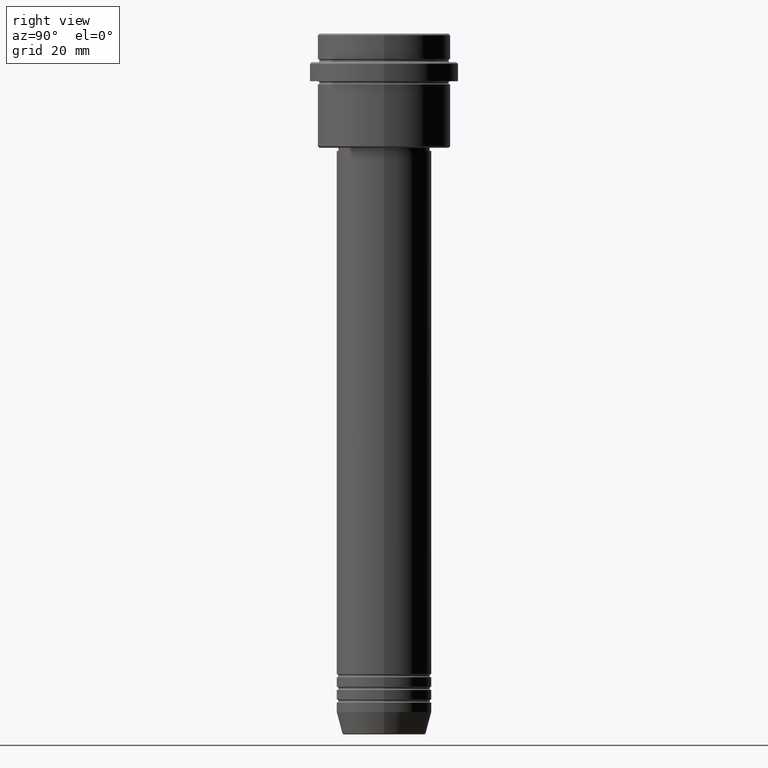
[diagram: clean part render]
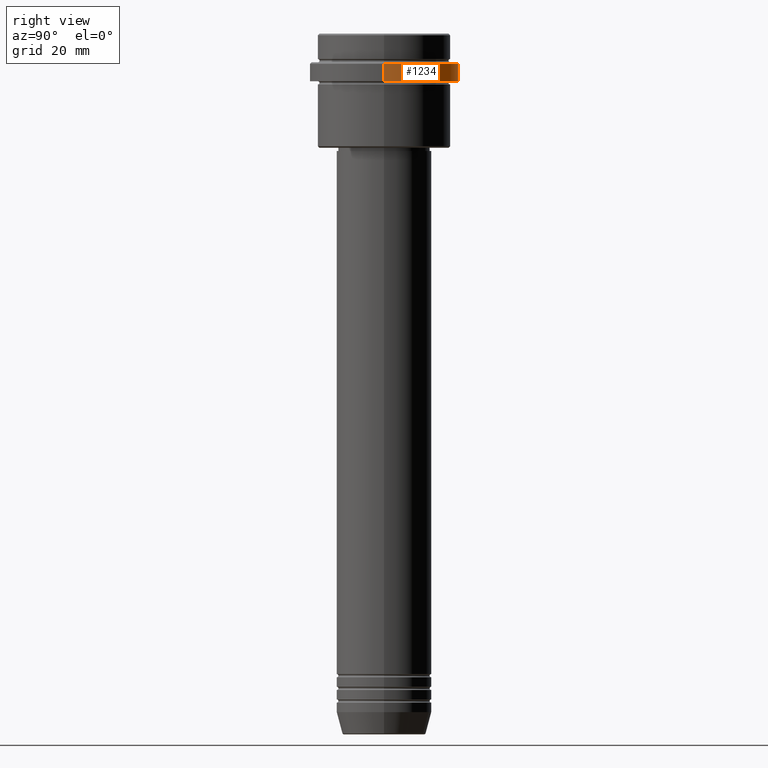
[diagram: same view with one face highlighted and labeled with its STEP entity id]
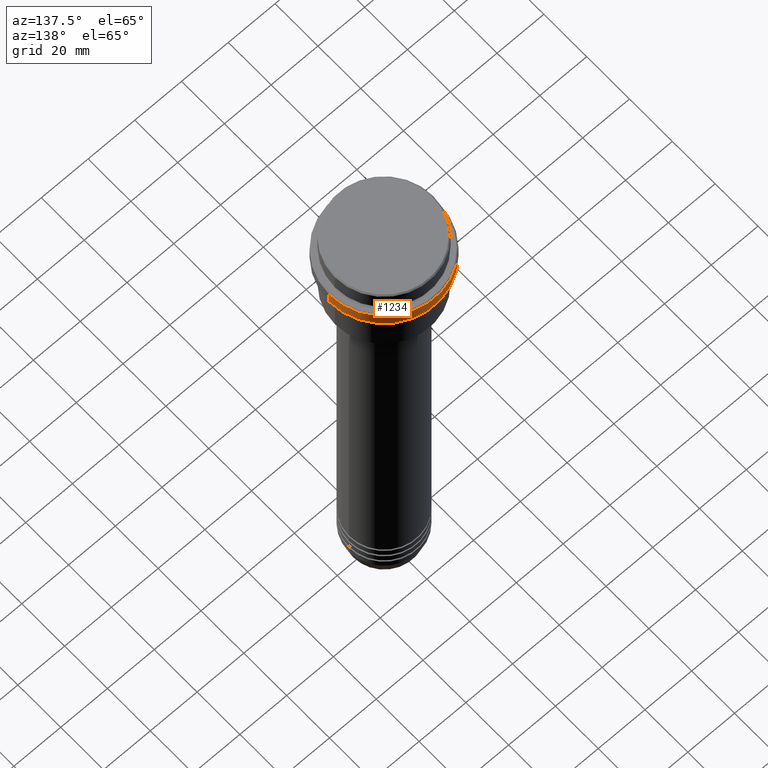
[diagram: same view with one face highlighted and labeled with its STEP entity id]
A machine part, right view. The second image highlights one B-rep face of the part: STEP entity #1234.
A second angle (auxiliary view) of the same face is appended — the face is thin or edge-on in the first view.
In plain terms, the highlighted cylindrical surface (partial cylindrical patch) has radius 23.5 mm, axis along (-0, -0, 1).
Its self-contained STEP definition (entity closure, byte-faithful):
#12 = CARTESIAN_POINT ( 'NONE',  ( -23.50000000000000711, 2.877919977996281109E-15, -15.00000000000000000 ) ) ;
#21 = CARTESIAN_POINT ( 'NONE',  ( 0.000000000000000000, 0.000000000000000000, -15.00000000000000000 ) ) ;
#47 = EDGE_CURVE ( 'NONE', #712, #926, #1346, .T. ) ;
#97 = CIRCLE ( 'NONE', #1412, 23.50000000000000355 ) ;
#105 = EDGE_CURVE ( 'NONE', #257, #894, #97, .T. ) ;
#109 = DIRECTION ( 'NONE',  ( -0.000000000000000000, -0.000000000000000000, 1.000000000000000000 ) ) ;
#145 = DIRECTION ( 'NONE',  ( 0.000000000000000000, 0.000000000000000000, -1.000000000000000000 ) ) ;
#152 = LINE ( 'NONE', #258, #310 ) ;
#176 = DIRECTION ( 'NONE',  ( -0.000000000000000000, -0.000000000000000000, 1.000000000000000000 ) ) ;
#181 = ORIENTED_EDGE ( 'NONE', *, *, #47, .T. ) ;
#227 = DIRECTION ( 'NONE',  ( 1.000000000000000000, 0.000000000000000000, 0.000000000000000000 ) ) ;
#257 = VERTEX_POINT ( 'NONE', #1368 ) ;
#258 = CARTESIAN_POINT ( 'NONE',  ( -23.50000000000000000, 2.877919977996280320E-15, 0.000000000000000000 ) ) ;
#310 = VECTOR ( 'NONE', #1025, 1000.000000000000000 ) ;
#323 = VECTOR ( 'NONE', #1095, 1000.000000000000000 ) ;
#400 = CARTESIAN_POINT ( 'NONE',  ( 23.50000000000000000, 0.000000000000000000, 0.000000000000000000 ) ) ;
#423 = EDGE_LOOP ( 'NONE', ( #867, #1190, #181, #524 ) ) ;
#490 = CARTESIAN_POINT ( 'NONE',  ( -23.50000000000000000, 2.877919977996280320E-15, -9.500000000000026645 ) ) ;
#524 = ORIENTED_EDGE ( 'NONE', *, *, #1345, .F. ) ;
#534 = AXIS2_PLACEMENT_3D ( 'NONE', #680, #145, #1039 ) ;
#603 = FACE_OUTER_BOUND ( 'NONE', #423, .T. ) ;
#680 = CARTESIAN_POINT ( 'NONE',  ( 0.000000000000000000, 0.000000000000000000, -9.500000000000026645 ) ) ;
#712 = VERTEX_POINT ( 'NONE', #490 ) ;
#739 = LINE ( 'NONE', #400, #323 ) ;
#786 = AXIS2_PLACEMENT_3D ( 'NONE', #1166, #176, #227 ) ;
#867 = ORIENTED_EDGE ( 'NONE', *, *, #105, .T. ) ;
#894 = VERTEX_POINT ( 'NONE', #12 ) ;
#926 = VERTEX_POINT ( 'NONE', #1014 ) ;
#993 = DIRECTION ( 'NONE',  ( 1.000000000000000000, 0.000000000000000000, 0.000000000000000000 ) ) ;
#1014 = CARTESIAN_POINT ( 'NONE',  ( 23.50000000000000000, 0.000000000000000000, -9.500000000000026645 ) ) ;
#1025 = DIRECTION ( 'NONE',  ( -0.000000000000000000, -0.000000000000000000, 1.000000000000000000 ) ) ;
#1039 = DIRECTION ( 'NONE',  ( 1.000000000000000000, 0.000000000000000000, 0.000000000000000000 ) ) ;
#1095 = DIRECTION ( 'NONE',  ( -0.000000000000000000, -0.000000000000000000, 1.000000000000000000 ) ) ;
#1163 = EDGE_CURVE ( 'NONE', #894, #712, #152, .T. ) ;
#1166 = CARTESIAN_POINT ( 'NONE',  ( 0.000000000000000000, 0.000000000000000000, 0.000000000000000000 ) ) ;
#1190 = ORIENTED_EDGE ( 'NONE', *, *, #1163, .T. ) ;
#1234 = ADVANCED_FACE ( 'NONE', ( #603 ), #1390, .T. ) ;
#1345 = EDGE_CURVE ( 'NONE', #257, #926, #739, .T. ) ;
#1346 = CIRCLE ( 'NONE', #534, 23.50000000000000000 ) ;
#1368 = CARTESIAN_POINT ( 'NONE',  ( 23.50000000000000355, 0.000000000000000000, -15.00000000000000000 ) ) ;
#1390 = CYLINDRICAL_SURFACE ( 'NONE', #786, 23.50000000000000000 ) ;
#1412 = AXIS2_PLACEMENT_3D ( 'NONE', #21, #109, #993 ) ;